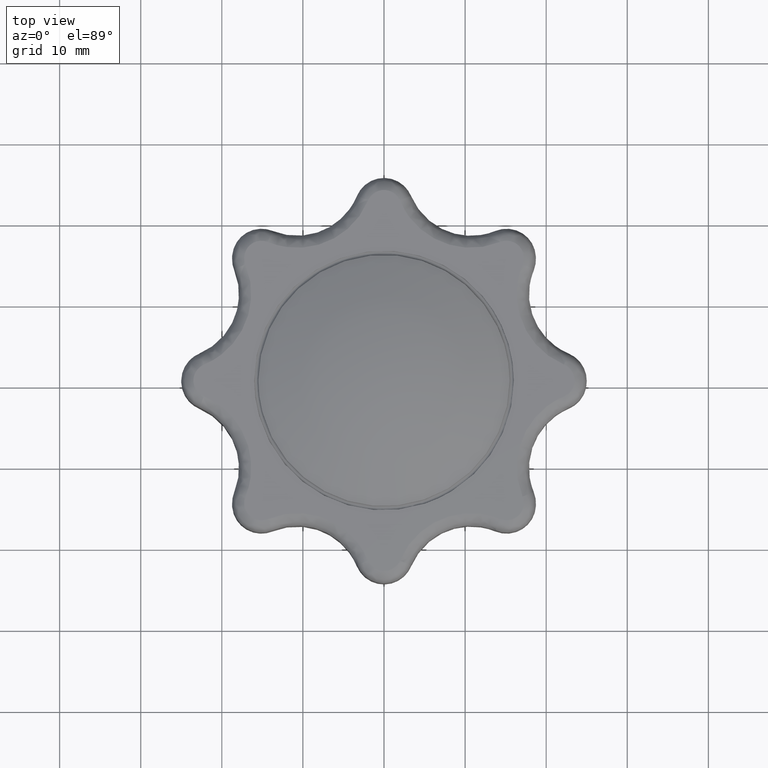
[diagram: clean part render]
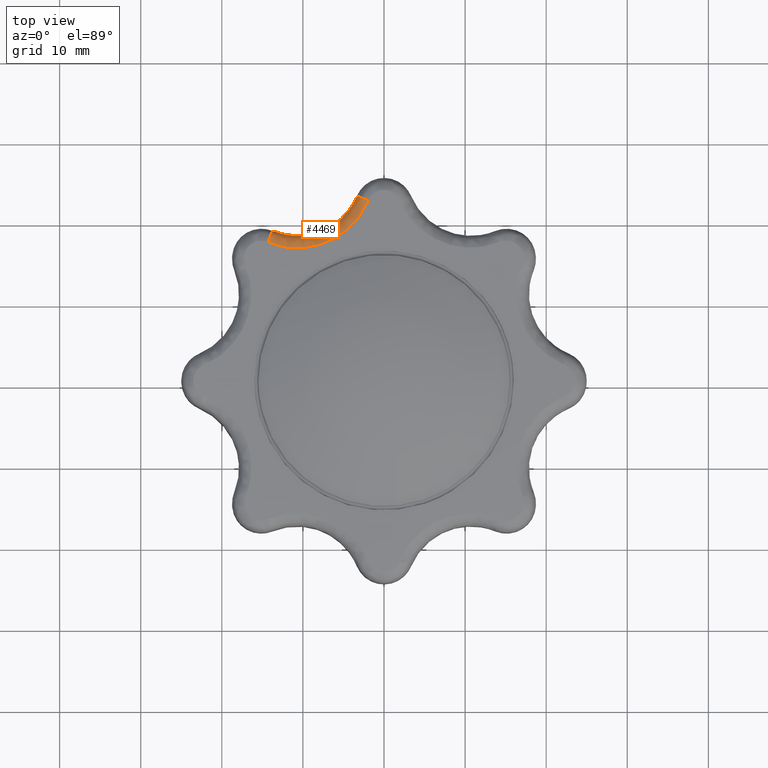
[diagram: same view with one face highlighted and labeled with its STEP entity id]
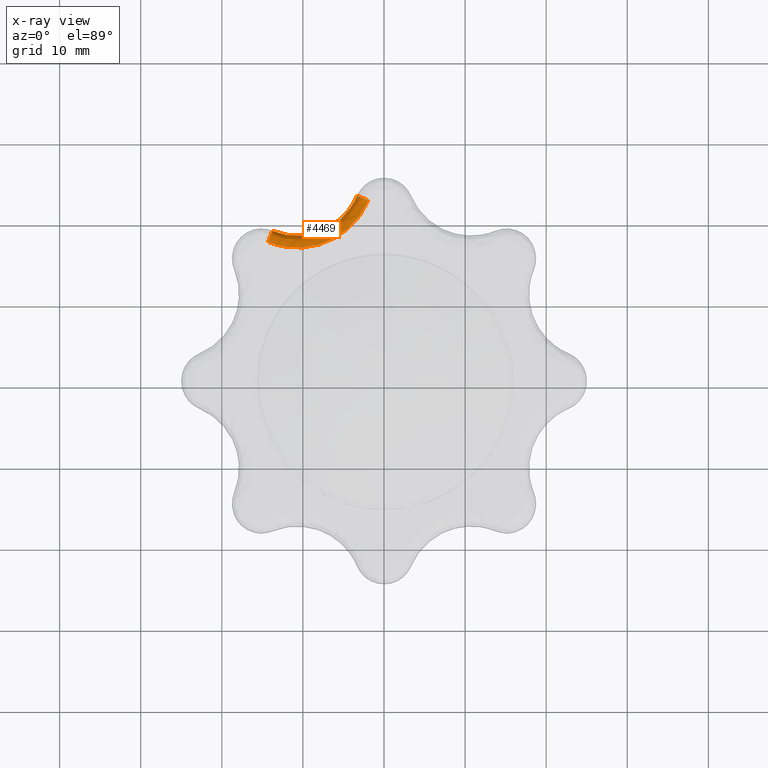
[diagram: x-ray of the same camera — body ghosted, the highlighted face saturated]
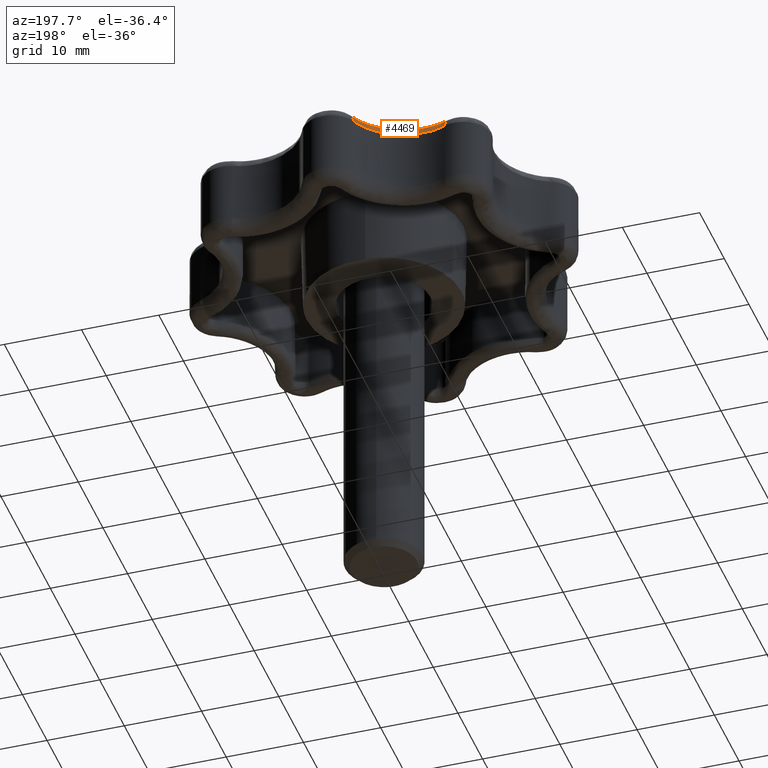
[diagram: same view with one face highlighted and labeled with its STEP entity id]
A machine part, top view. The second image highlights one B-rep face of the part: STEP entity #4469.
The next image is the same camera in x-ray: the body ghosted, the highlighted face saturated — about 0% of this face is hidden behind the body in this view.
A second angle (auxiliary view) of the same face is appended — the face is thin or edge-on in the first view.
In plain terms, the highlighted face is a freeform B-spline surface patch.
Its self-contained STEP definition (entity closure, byte-faithful):
#4295=CARTESIAN_POINT('',(-3.335324542240175,22.780201144463948,11.500000000000000));
#4296=VERTEX_POINT('',#4295);
#4297=CARTESIAN_POINT('',(-1.951608977199225,22.201121178878850,13.0));
#4298=VERTEX_POINT('',#4297);
#4299=CARTESIAN_POINT('',(-3.335324542240173,22.780201144463959,11.500000000000000));
#4300=CARTESIAN_POINT('',(-3.335324542240173,22.780201144463959,12.121320575089594));
#4301=CARTESIAN_POINT('',(-2.930043592238965,22.610592530881529,12.560660451261150));
#4302=CARTESIAN_POINT('',(-2.524762642237757,22.440983917299103,13.000000327432696));
#4303=CARTESIAN_POINT('',(-1.951608977199225,22.201121178878850,13.0));
#4311=(BOUNDED_CURVE()B_SPLINE_CURVE(2,(#4299,#4300,#4301,#4302,#4303),.UNSPECIFIED.,.F.,.U.)B_SPLINE_CURVE_WITH_KNOTS((3,2,3),(0.0,0.500000000000000,1.0),.UNSPECIFIED.)CURVE()GEOMETRIC_REPRESENTATION_ITEM()RATIONAL_B_SPLINE_CURVE((1.0,0.923879482093204,1.0,0.923879482093204,1.0))REPRESENTATION_ITEM(''));
#4312=EDGE_CURVE('',#4296,#4298,#4311,.T.);
#4371=CARTESIAN_POINT('',(-14.318567596073139,17.078558426921649,13.0));
#4372=VERTEX_POINT('',#4371);
#4373=CARTESIAN_POINT('',(-13.749604229480180,18.466464439514301,11.500000000000000));
#4374=VERTEX_POINT('',#4373);
#4375=CARTESIAN_POINT('',(-14.318567596073139,17.078558426921649,13.0));
#4376=CARTESIAN_POINT('',(-13.749604534484002,18.466463695499854,13.000000000000002));
#4377=CARTESIAN_POINT('',(-13.749604229480180,18.466464439514301,11.500000000000000));
#4385=(BOUNDED_CURVE()B_SPLINE_CURVE(2,(#4375,#4376,#4377),.UNSPECIFIED.,.F.,.U.)CURVE()GEOMETRIC_REPRESENTATION_ITEM()QUASI_UNIFORM_CURVE()RATIONAL_B_SPLINE_CURVE((1.0,0.707106781186548,1.0))REPRESENTATION_ITEM(''));
#4386=EDGE_CURVE('',#4372,#4374,#4385,.T.);
#4422=CARTESIAN_POINT('',(-3.135381598636478,23.298525497237950,11.395694222686469));
#4423=CARTESIAN_POINT('',(-6.067484979546474,14.651149095060559,11.395694222686469));
#4424=CARTESIAN_POINT('',(-14.256164392692213,18.690936013451363,11.395694222686469));
#4425=CARTESIAN_POINT('',(-3.248966588266188,23.337039251771650,13.116307053852758));
#4426=CARTESIAN_POINT('',(-6.137131489043438,14.819246471618364,13.116307053852760));
#4427=CARTESIAN_POINT('',(-14.203100997057424,18.798495927923110,13.116307053852758));
#4428=CARTESIAN_POINT('',(-1.619478192544331,22.784521561776486,12.996368968234584));
#4429=CARTESIAN_POINT('',(-5.137983807665764,12.407724268330830,12.996368968234588));
#4430=CARTESIAN_POINT('',(-14.964347599327365,17.255443161462331,12.996368968234592));
#4438=(BOUNDED_SURFACE()B_SPLINE_SURFACE(2,2,((#4422,#4425,#4428),(#4423,#4426,#4429),(#4424,#4427,#4430)),.UNSPECIFIED.,.F.,.F.,.U.)B_SPLINE_SURFACE_WITH_KNOTS((3,3),(3,3),(0.0,17.412346821569368),(0.0,2.733562394310799),.UNSPECIFIED.)GEOMETRIC_REPRESENTATION_ITEM()RATIONAL_B_SPLINE_SURFACE(((0.842594675856031,0.552931487242824,0.842594941142393),(0.556172258165098,0.364974005512198,0.556172433272915),(0.844926493085616,0.554461683439973,0.844926759106138)))REPRESENTATION_ITEM('')SURFACE());
#4439=ORIENTED_EDGE('',*,*,#4312,.F.);
#4440=CARTESIAN_POINT('',(-13.749604229480180,18.466464439514301,11.500000000000000));
#4441=CARTESIAN_POINT('',(-6.401284596705476,15.454068483544836,11.499999999999998));
#4442=CARTESIAN_POINT('',(-3.335324542240173,22.780201144463948,11.500000000000000));
#4450=(BOUNDED_CURVE()B_SPLINE_CURVE(2,(#4440,#4441,#4442),.UNSPECIFIED.,.F.,.U.)CURVE()GEOMETRIC_REPRESENTATION_ITEM()QUASI_UNIFORM_CURVE()RATIONAL_B_SPLINE_CURVE((1.0,0.709683141952040,1.0))REPRESENTATION_ITEM(''));
#4451=EDGE_CURVE('',#4374,#4296,#4450,.T.);
#4452=ORIENTED_EDGE('',*,*,#4451,.F.);
#4453=ORIENTED_EDGE('',*,*,#4386,.F.);
#4454=CARTESIAN_POINT('',(-1.951608977199225,22.201121178878850,13.0));
#4455=CARTESIAN_POINT('',(-5.592437436304634,13.501338554422455,13.0));
#4456=CARTESIAN_POINT('',(-14.318567596073150,17.078558426921621,13.0));
#4464=(BOUNDED_CURVE()B_SPLINE_CURVE(2,(#4454,#4455,#4456),.UNSPECIFIED.,.F.,.U.)CURVE()GEOMETRIC_REPRESENTATION_ITEM()QUASI_UNIFORM_CURVE()RATIONAL_B_SPLINE_CURVE((1.0,0.709683125967251,1.0))REPRESENTATION_ITEM(''));
#4465=EDGE_CURVE('',#4298,#4372,#4464,.T.);
#4466=ORIENTED_EDGE('',*,*,#4465,.F.);
#4467=EDGE_LOOP('',(#4439,#4452,#4453,#4466));
#4468=FACE_OUTER_BOUND('',#4467,.T.);
#4469=ADVANCED_FACE('',(#4468),#4438,.T.);